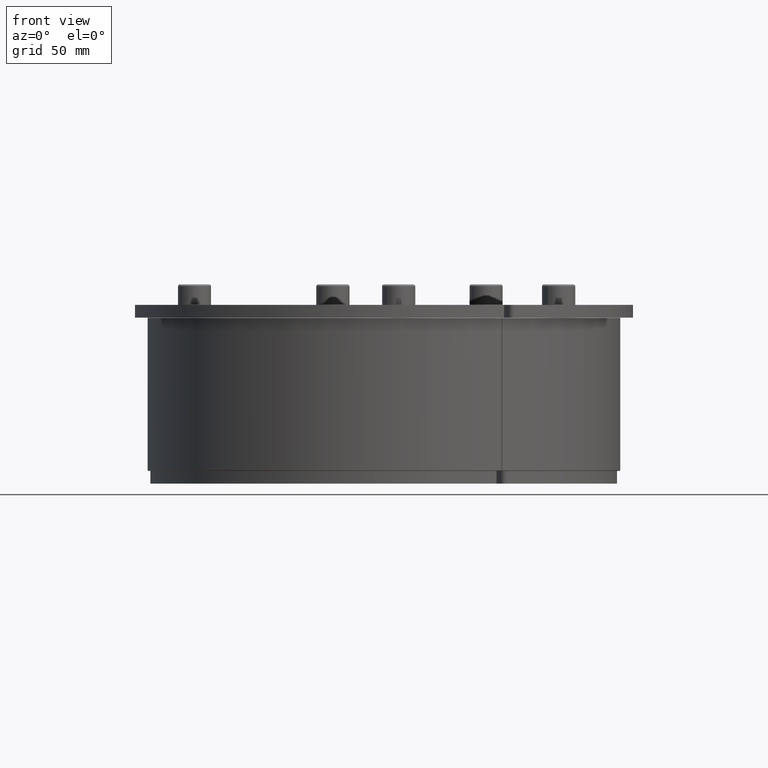
[diagram: clean part render]
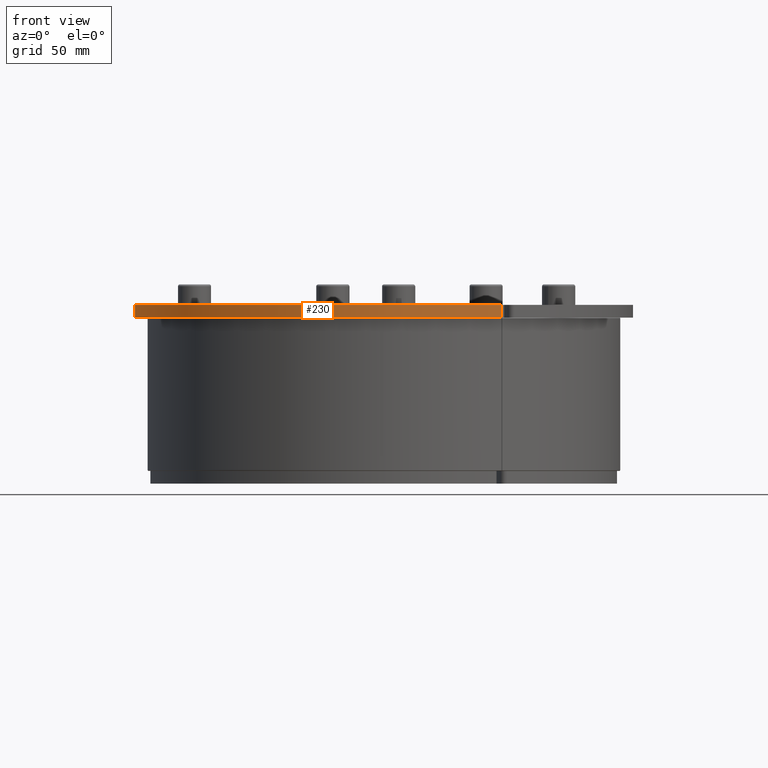
[diagram: same view with one face highlighted and labeled with its STEP entity id]
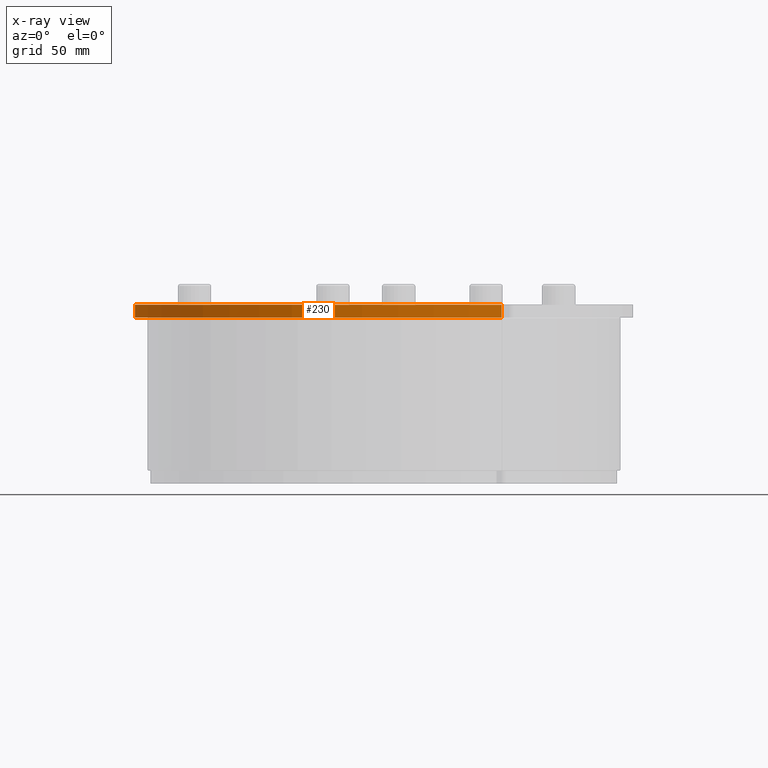
[diagram: x-ray of the same camera — body ghosted, the highlighted face saturated]
A machine part, front view. The second image highlights one B-rep face of the part: STEP entity #230.
The next image is the same camera in x-ray: the body ghosted, the highlighted face saturated — about 0% of this face is hidden behind the body in this view.
In plain terms, the highlighted cylindrical surface (partial cylindrical patch) has radius 97.5 mm, axis along (-0, 0, -1).
Its self-contained STEP definition (entity closure, byte-faithful):
#161=CARTESIAN_POINT('',(46.073454261635156,85.927218111614764,5.0));
#162=VERTEX_POINT('',#161);
#180=CARTESIAN_POINT('',(46.073454261635156,85.927218111614764,0.0));
#181=VERTEX_POINT('',#180);
#189=CARTESIAN_POINT('',(46.073454261635149,85.927218111614764,0.0));
#190=DIRECTION('',(0.0,0.0,1.0));
#191=VECTOR('',#190,5.0);
#192=LINE('',#189,#191);
#193=EDGE_CURVE('',#181,#162,#192,.T.);
#198=CARTESIAN_POINT('',(0.0,0.0,0.0));
#199=DIRECTION('',(0.0,0.0,1.0));
#200=DIRECTION('',(0.491091388986829,0.871108057397581,0.0));
#201=AXIS2_PLACEMENT_3D('',#198,#199,#200);
#202=CYLINDRICAL_SURFACE('',#201,97.5);
#203=ORIENTED_EDGE('',*,*,#193,.F.);
#204=CARTESIAN_POINT('',(-97.451880892002279,3.062827225130911,0.0));
#205=VERTEX_POINT('',#204);
#206=CARTESIAN_POINT('',(0.0,0.0,0.0));
#207=DIRECTION('',(0.0,0.0,1.0));
#208=DIRECTION('',(0.491091388986829,0.871108057397581,0.0));
#209=AXIS2_PLACEMENT_3D('',#206,#207,#208);
#210=CIRCLE('',#209,97.5);
#211=EDGE_CURVE('',#181,#205,#210,.T.);
#212=ORIENTED_EDGE('',*,*,#211,.T.);
#213=CARTESIAN_POINT('',(-97.451880892002279,3.062827225130911,5.0));
#214=VERTEX_POINT('',#213);
#215=CARTESIAN_POINT('',(-97.451880892002279,3.062827225130911,5.0));
#216=DIRECTION('',(0.0,0.0,-1.0));
#217=VECTOR('',#216,5.0);
#218=LINE('',#215,#217);
#219=EDGE_CURVE('',#214,#205,#218,.T.);
#220=ORIENTED_EDGE('',*,*,#219,.F.);
#221=CARTESIAN_POINT('',(0.0,0.0,5.0));
#222=DIRECTION('',(0.0,0.0,-1.0));
#223=DIRECTION('',(0.491091388986829,0.871108057397581,0.0));
#224=AXIS2_PLACEMENT_3D('',#221,#222,#223);
#225=CIRCLE('',#224,97.5);
#226=EDGE_CURVE('',#214,#162,#225,.T.);
#227=ORIENTED_EDGE('',*,*,#226,.T.);
#228=EDGE_LOOP('',(#203,#212,#220,#227));
#229=FACE_OUTER_BOUND('',#228,.T.);
#230=ADVANCED_FACE('',(#229),#202,.T.);